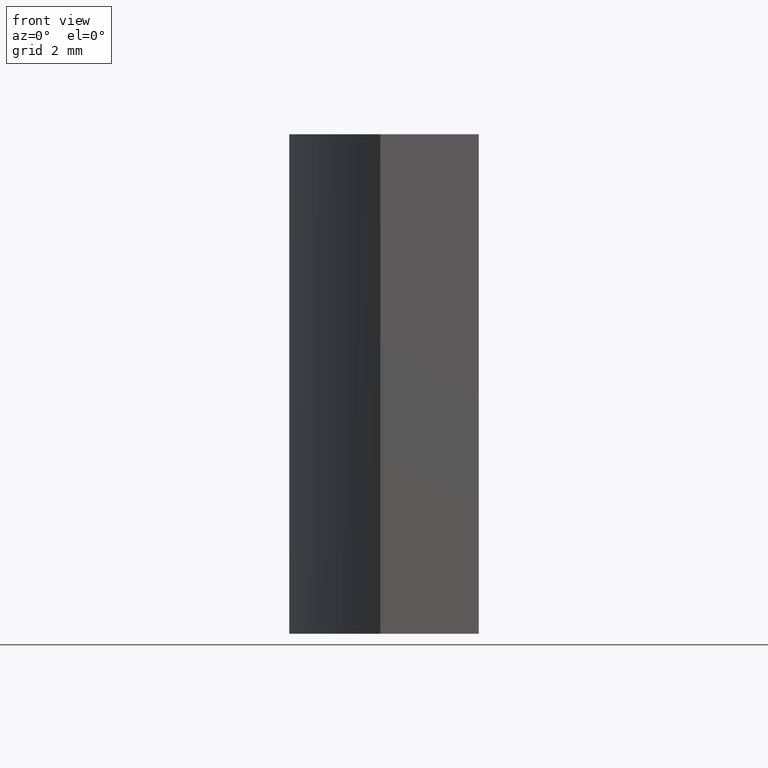
[diagram: clean part render]
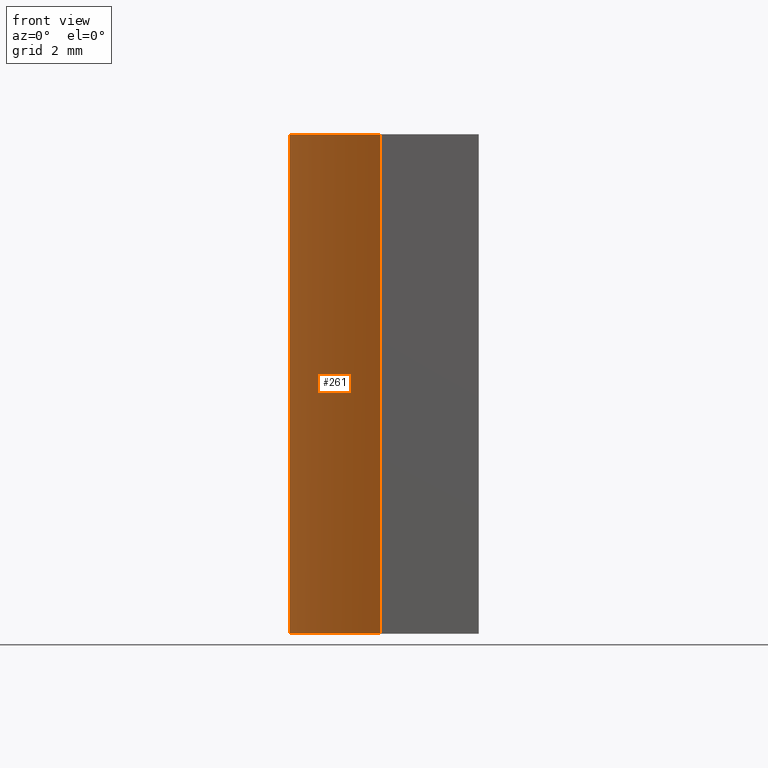
[diagram: same view with one face highlighted and labeled with its STEP entity id]
A machine part, front view. The second image highlights one B-rep face of the part: STEP entity #261.
In plain terms, the highlighted cylindrical surface (partial cylindrical patch) has radius 7.76 mm, axis along (-0, -0, -1).
Its self-contained STEP definition (entity closure, byte-faithful):
#3 = FACE_OUTER_BOUND ( 'NONE', #133, .T. ) ;
#8 = CIRCLE ( 'NONE', #103, 7.759999999999998899 ) ;
#9 = CARTESIAN_POINT ( 'NONE',  ( -7.759999999999998899, 0.000000000000000000, 10.00000000000000000 ) ) ;
#10 = AXIS2_PLACEMENT_3D ( 'NONE', #21, #230, #60 ) ;
#14 = VERTEX_POINT ( 'NONE', #247 ) ;
#18 = DIRECTION ( 'NONE',  ( -0.000000000000000000, -0.000000000000000000, -1.000000000000000000 ) ) ;
#21 = CARTESIAN_POINT ( 'NONE',  ( 0.000000000000000000, 0.000000000000000000, 10.00000000000000000 ) ) ;
#31 = ORIENTED_EDGE ( 'NONE', *, *, #196, .T. ) ;
#35 = VECTOR ( 'NONE', #40, 1000.000000000000000 ) ;
#36 = DIRECTION ( 'NONE',  ( 1.000000000000000000, 0.000000000000000000, 0.000000000000000000 ) ) ;
#38 = CARTESIAN_POINT ( 'NONE',  ( -5.934441844015322154, -5.000000000000000000, 10.00000000000000000 ) ) ;
#40 = DIRECTION ( 'NONE',  ( -0.000000000000000000, -0.000000000000000000, -1.000000000000000000 ) ) ;
#49 = ORIENTED_EDGE ( 'NONE', *, *, #265, .F. ) ;
#52 = CIRCLE ( 'NONE', #222, 7.759999999999998899 ) ;
#56 = CARTESIAN_POINT ( 'NONE',  ( 0.000000000000000000, 0.000000000000000000, 10.00000000000000000 ) ) ;
#58 = EDGE_CURVE ( 'NONE', #157, #271, #8, .T. ) ;
#59 = DIRECTION ( 'NONE',  ( 0.000000000000000000, 0.000000000000000000, 1.000000000000000000 ) ) ;
#60 = DIRECTION ( 'NONE',  ( -1.000000000000000000, 0.000000000000000000, 0.000000000000000000 ) ) ;
#61 = CARTESIAN_POINT ( 'NONE',  ( -5.934441844015322154, -5.000000000000000000, 10.00000000000000000 ) ) ;
#75 = CYLINDRICAL_SURFACE ( 'NONE', #10, 7.759999999999998899 ) ;
#79 = CARTESIAN_POINT ( 'NONE',  ( 0.000000000000000000, 0.000000000000000000, 0.000000000000000000 ) ) ;
#87 = VECTOR ( 'NONE', #18, 1000.000000000000000 ) ;
#89 = ORIENTED_EDGE ( 'NONE', *, *, #239, .T. ) ;
#103 = AXIS2_PLACEMENT_3D ( 'NONE', #56, #59, #140 ) ;
#120 = CARTESIAN_POINT ( 'NONE',  ( -7.759999999999998899, 0.000000000000000000, 0.000000000000000000 ) ) ;
#125 = LINE ( 'NONE', #141, #87 ) ;
#133 = EDGE_LOOP ( 'NONE', ( #220, #31, #89, #49 ) ) ;
#140 = DIRECTION ( 'NONE',  ( 1.000000000000000000, 0.000000000000000000, 0.000000000000000000 ) ) ;
#141 = CARTESIAN_POINT ( 'NONE',  ( -7.759999999999998899, 0.000000000000000000, 10.00000000000000000 ) ) ;
#157 = VERTEX_POINT ( 'NONE', #9 ) ;
#164 = LINE ( 'NONE', #38, #35 ) ;
#196 = EDGE_CURVE ( 'NONE', #157, #203, #125, .T. ) ;
#203 = VERTEX_POINT ( 'NONE', #120 ) ;
#213 = DIRECTION ( 'NONE',  ( 0.000000000000000000, 0.000000000000000000, 1.000000000000000000 ) ) ;
#220 = ORIENTED_EDGE ( 'NONE', *, *, #58, .F. ) ;
#222 = AXIS2_PLACEMENT_3D ( 'NONE', #79, #213, #36 ) ;
#230 = DIRECTION ( 'NONE',  ( -0.000000000000000000, -0.000000000000000000, -1.000000000000000000 ) ) ;
#239 = EDGE_CURVE ( 'NONE', #203, #14, #52, .T. ) ;
#247 = CARTESIAN_POINT ( 'NONE',  ( -5.934441844015322154, -5.000000000000000000, 0.000000000000000000 ) ) ;
#261 = ADVANCED_FACE ( 'NONE', ( #3 ), #75, .T. ) ;
#265 = EDGE_CURVE ( 'NONE', #271, #14, #164, .T. ) ;
#271 = VERTEX_POINT ( 'NONE', #61 ) ;